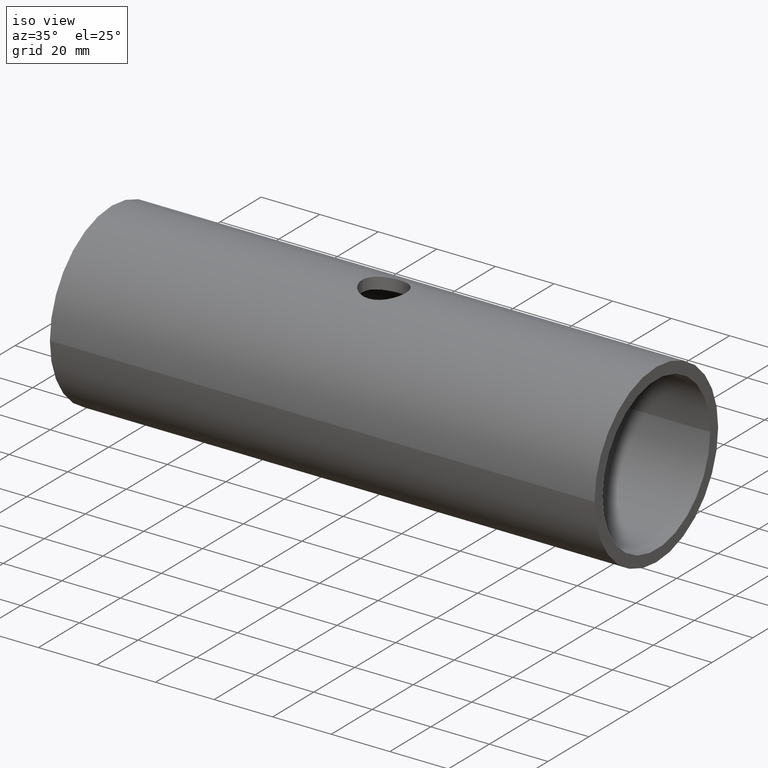
[diagram: clean part render]
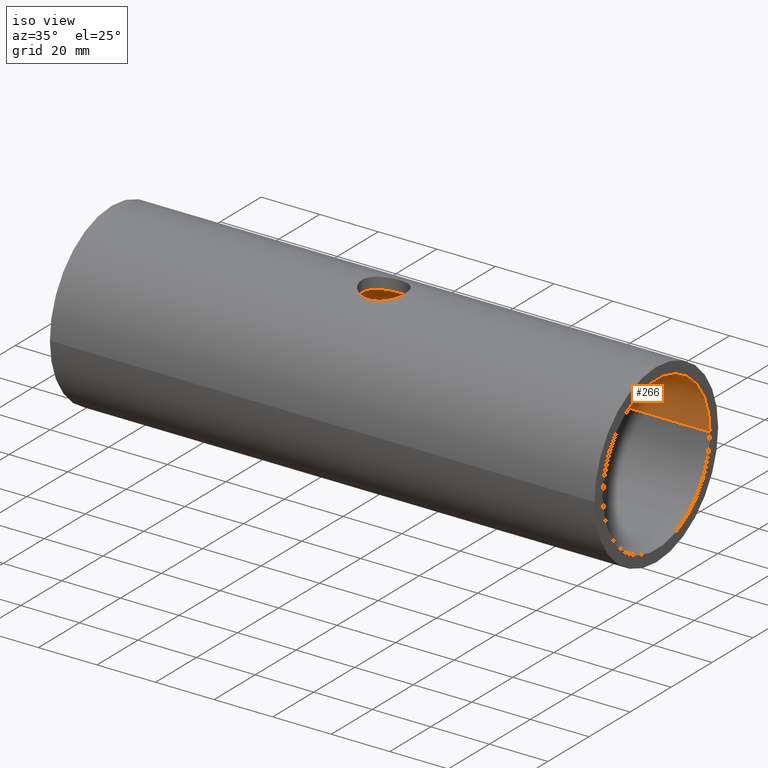
[diagram: same view with one face highlighted and labeled with its STEP entity id]
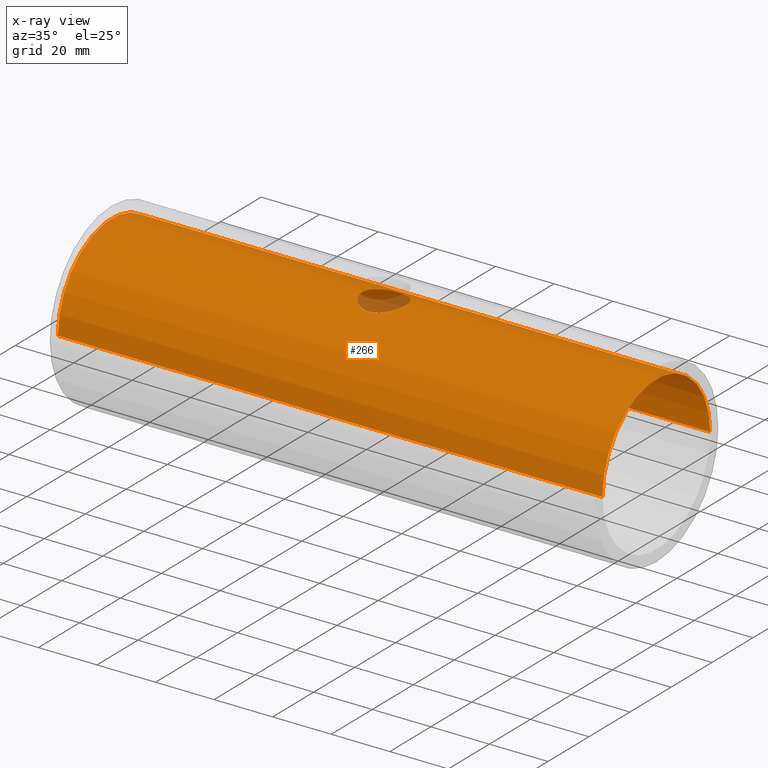
[diagram: x-ray of the same camera — body ghosted, the highlighted face saturated]
A machine part, iso view. The second image highlights one B-rep face of the part: STEP entity #266.
The next image is the same camera in x-ray: the body ghosted, the highlighted face saturated — about 1% of this face is hidden behind the body in this view.
In plain terms, the highlighted cylindrical surface (partial cylindrical patch) has radius 26.25 mm, axis along (1, 0, -0).
Its self-contained STEP definition (entity closure, byte-faithful):
#9 = CARTESIAN_POINT ( 'NONE',  ( 0.4982442228468673684, 7.487512512649368013, 25.15949742635218200 ) ) ;
#10 = B_SPLINE_CURVE_WITH_KNOTS ( 'NONE', 3,
 ( #129, #173, #20, #12, #176, #426, #469, #430, #210, #460, #286, #432, #276, #239, #356, #397, #389, #317, #62, #9, #93, #167, #312, #459, #128, #275, #53, #354, #319, #15, #461, #244, #391, #17, #448, #36, #224, #188, #181, #370, #367, #140 ),
 .UNSPECIFIED., .F., .F.,
 ( 4, 2, 2, 2, 2, 2, 2, 2, 2, 2, 2, 2, 2, 2, 2, 2, 2, 2, 2, 2, 4 ),
 ( 0.02357184798304131149, 0.02504468882056489626, 0.02651752965808848450, 0.02799037049561206580, 0.02946321133313565405, 0.03019963175189744470, 0.03093605217065923882, 0.03240889300818282359, 0.03388173384570640490, 0.03461815426446819555, 0.03535457468322998620, 0.03682741552075356750, 0.03756383593951535815, 0.03830025635827714880, 0.03977309719580073011, 0.04124593803332431141, 0.04198235845208610900, 0.04271877887084789965, 0.04419161970837148790, 0.04566446054589507614, 0.04713730138341866438 ),
 .UNSPECIFIED. ) ;
#11 = AXIS2_PLACEMENT_3D ( 'NONE', #350, #394, #237 ) ;
#12 = CARTESIAN_POINT ( 'NONE',  ( 7.257323325381391577, 1.956487219723090698, 26.18153013994171019 ) ) ;
#15 = CARTESIAN_POINT ( 'NONE',  ( -4.579380598035382555, 5.960044461124792470, 25.56599154980069954 ) ) ;
#17 = CARTESIAN_POINT ( 'NONE',  ( -5.947788700670843198, 4.575343241765798652, 25.84890158221534762 ) ) ;
#20 = CARTESIAN_POINT ( 'NONE',  ( 7.451918818702840674, 0.9825935118486395226, 26.23613677163786662 ) ) ;
#23 = CARTESIAN_POINT ( 'NONE',  ( -0.4954307896302108660, -7.499779785306837532, 25.15583040220200672 ) ) ;
#25 = FACE_OUTER_BOUND ( 'NONE', #200, .T. ) ;
#31 = CARTESIAN_POINT ( 'NONE',  ( -6.735596941494830681, -3.335135102591766820, 26.04126808146256167 ) ) ;
#34 = LINE ( 'NONE', #222, #143 ) ;
#36 = CARTESIAN_POINT ( 'NONE',  ( -6.504483939671300341, 3.765872697938024594, 25.98173926936478750 ) ) ;
#42 = DIRECTION ( 'NONE',  ( 1.000000000000000000, 3.061616997868383141E-16, -0.000000000000000000 ) ) ;
#53 = CARTESIAN_POINT ( 'NONE',  ( -2.651573279083387469, 7.019901144310327190, 25.29412891396165364 ) ) ;
#56 = VERTEX_POINT ( 'NONE', #478 ) ;
#62 = CARTESIAN_POINT ( 'NONE',  ( 0.9901362894668428449, 7.438462277982056392, 25.17404284799605563 ) ) ;
#65 = CARTESIAN_POINT ( 'NONE',  ( 2.421665530511560416, -7.115405333184021686, 25.26800389219186727 ) ) ;
#68 = CARTESIAN_POINT ( 'NONE',  ( 5.959793766460320441, -4.579171722100744191, 25.85076796984041181 ) ) ;
#71 = CARTESIAN_POINT ( 'NONE',  ( 4.948487315591407310, -5.641125964974412987, 25.63719029907033331 ) ) ;
#75 = CARTESIAN_POINT ( 'NONE',  ( -4.957307021794875368, -5.649050145479054486, 25.63735583606916890 ) ) ;
#77 = EDGE_CURVE ( 'NONE', #357, #145, #296, .T. ) ;
#82 = CARTESIAN_POINT ( 'NONE',  ( 7.500000000000000000, -0.2455578652031206732, 26.24999999999999645 ) ) ;
#85 = CARTESIAN_POINT ( 'NONE',  ( -93.00000000000001421, 26.24999999999998224, 0.000000000000000000 ) ) ;
#88 = EDGE_CURVE ( 'NONE', #466, #98, #34, .T. ) ;
#93 = CARTESIAN_POINT ( 'NONE',  ( 0.2483299581783618426, 7.499962883882426823, 25.15577581276076202 ) ) ;
#94 = ORIENTED_EDGE ( 'NONE', *, *, #77, .F. ) ;
#97 = DIRECTION ( 'NONE',  ( 5.286776307738840622E-16, -1.000000000000000000, 0.000000000000000000 ) ) ;
#98 = VERTEX_POINT ( 'NONE', #263 ) ;
#106 = DIRECTION ( 'NONE',  ( 1.000000000000000000, 3.061616997868383141E-16, -0.000000000000000000 ) ) ;
#108 = CARTESIAN_POINT ( 'NONE',  ( -7.500000000000000000, 0.000000000000000000, 26.24999999999999645 ) ) ;
#114 = CARTESIAN_POINT ( 'NONE',  ( -2.654052559620941665, -7.018943290593978368, 25.29439405483505254 ) ) ;
#116 = CARTESIAN_POINT ( 'NONE',  ( 7.402417214875510076, -1.230903245559818560, 26.22224469222763332 ) ) ;
#123 = CARTESIAN_POINT ( 'NONE',  ( 7.500000000000000000, 9.185202140829394798E-16, 26.25000000000000000 ) ) ;
#125 = AXIS2_PLACEMENT_3D ( 'NONE', #417, #310, #97 ) ;
#128 = CARTESIAN_POINT ( 'NONE',  ( -1.946825517914259063, 7.247145416207924740, 25.22988295778231915 ) ) ;
#129 = CARTESIAN_POINT ( 'NONE',  ( 7.500000000000000000, 9.185202140829394798E-16, 26.25000000000000000 ) ) ;
#132 = EDGE_CURVE ( 'NONE', #145, #98, #184, .T. ) ;
#140 = CARTESIAN_POINT ( 'NONE',  ( -7.500000000000000000, 0.000000000000000000, 26.24999999999999645 ) ) ;
#142 = CARTESIAN_POINT ( 'NONE',  ( -5.637510002311412194, -4.952645468390433514, 25.77927375884239325 ) ) ;
#143 = VECTOR ( 'NONE', #383, 1000.000000000000000 ) ;
#145 = VERTEX_POINT ( 'NONE', #279 ) ;
#148 = CARTESIAN_POINT ( 'NONE',  ( 6.502740149739227427, -3.768597344396964033, 25.98131429213729859 ) ) ;
#150 = CARTESIAN_POINT ( 'NONE',  ( -3.762350377321380446, -6.506730541467970141, 25.43235298066393568 ) ) ;
#153 = CARTESIAN_POINT ( 'NONE',  ( -6.504952719529422112, -3.764981594919491137, 25.98186096117645860 ) ) ;
#156 = CARTESIAN_POINT ( 'NONE',  ( 7.257022267147787531, -1.956844783364594775, 26.18144794486693172 ) ) ;
#167 = CARTESIAN_POINT ( 'NONE',  ( -0.4932893763482117389, 7.500073979778701272, 25.15574269036435595 ) ) ;
#173 = CARTESIAN_POINT ( 'NONE',  ( 7.500000000000000000, 0.4909825002862310273, 26.25000000000000711 ) ) ;
#176 = CARTESIAN_POINT ( 'NONE',  ( 7.113836750685355703, 2.425452911901687880, 26.14166035846440650 ) ) ;
#177 = ORIENTED_EDGE ( 'NONE', *, *, #333, .T. ) ;
#181 = CARTESIAN_POINT ( 'NONE',  ( -7.257729075573986499, 1.953876576627915362, 26.18164515216760080 ) ) ;
#183 = CARTESIAN_POINT ( 'NONE',  ( -7.246822489867941641, -1.947966752084596687, 26.17869650504931656 ) ) ;
#184 = CIRCLE ( 'NONE', #125, 26.25000000000000000 ) ;
#186 = CYLINDRICAL_SURFACE ( 'NONE', #421, 26.25000000000000000 ) ;
#188 = CARTESIAN_POINT ( 'NONE',  ( -7.111404207987189530, 2.432616021029860853, 26.14099483213148289 ) ) ;
#200 = EDGE_LOOP ( 'NONE', ( #94, #234, #470, #360 ) ) ;
#210 = CARTESIAN_POINT ( 'NONE',  ( 5.650271246520413904, 4.956182449128235135, 25.78029389019253870 ) ) ;
#212 = CARTESIAN_POINT ( 'NONE',  ( -3.330092453580004275, -6.737857513618714655, 25.37127348395359050 ) ) ;
#213 = EDGE_CURVE ( 'NONE', #357, #466, #376, .T. ) ;
#216 = CARTESIAN_POINT ( 'NONE',  ( 4.570411846740224604, -5.951568231689370769, 25.56690564317473857 ) ) ;
#218 = CARTESIAN_POINT ( 'NONE',  ( 6.738411789018767806, -3.329209596498880597, 26.04200243331143838 ) ) ;
#219 = VERTEX_POINT ( 'NONE', #351 ) ;
#222 = CARTESIAN_POINT ( 'NONE',  ( -93.00000000000001421, 26.24999999999998224, 0.000000000000000000 ) ) ;
#224 = CARTESIAN_POINT ( 'NONE',  ( -6.734812539582997637, 3.336463782483592766, 26.04106835265158892 ) ) ;
#234 = ORIENTED_EDGE ( 'NONE', *, *, #213, .T. ) ;
#237 = DIRECTION ( 'NONE',  ( 5.286776307738840622E-16, -1.000000000000000000, 0.000000000000000000 ) ) ;
#239 = CARTESIAN_POINT ( 'NONE',  ( 3.767512594301681617, 6.503277777481168975, 25.43319712410920630 ) ) ;
#240 = B_SPLINE_CURVE_WITH_KNOTS ( 'NONE', 3,
 ( #108, #403, #409, #482, #183, #326, #442, #31, #153, #332, #408, #142, #373, #75, #480, #150, #212, #114, #300, #299, #363, #477, #23, #291, #399, #439, #65, #473, #255, #258, #288, #434, #216, #71, #405, #365, #68, #148, #218, #379, #156, #116, #303, #272, #82, #123 ),
 .UNSPECIFIED., .F., .F.,
 ( 4, 2, 2, 2, 2, 2, 2, 2, 2, 2, 2, 2, 2, 2, 2, 2, 2, 2, 2, 2, 2, 2, 4 ),
 ( 0.000000000000000000, 0.001473240498940076330, 0.002209860748410115254, 0.002946480997880153961, 0.004419721496820232243, 0.005156341746290273552, 0.005892961995760314861, 0.007366202494700398347, 0.008839442993640481833, 0.009576063243110524009, 0.01031268349258056619, 0.01178592399152065054, 0.01325916449046073489, 0.01473240498940081925, 0.01546902523887086142, 0.01620564548834090013, 0.01694226573781094231, 0.01767888598728098101, 0.01915212648622106537, 0.02062536698516114625, 0.02209860748410123060, 0.02283522773357126931, 0.02357184798304131149 ),
 .UNSPECIFIED. ) ;
#241 = VECTOR ( 'NONE', #42, 1000.000000000000000 ) ;
#242 = EDGE_CURVE ( 'NONE', #219, #56, #10, .T. ) ;
#244 = CARTESIAN_POINT ( 'NONE',  ( -5.472852982011519707, 5.133906058509772663, 25.74366513659960276 ) ) ;
#255 = CARTESIAN_POINT ( 'NONE',  ( 3.329099623049039725, -6.725110091659699307, 25.37419375296325441 ) ) ;
#258 = CARTESIAN_POINT ( 'NONE',  ( 3.760854861028969598, -6.493533765170020011, 25.43444187707800452 ) ) ;
#263 = CARTESIAN_POINT ( 'NONE',  ( 92.99999999999998579, 26.25000000000003553, 0.000000000000000000 ) ) ;
#264 = DIRECTION ( 'NONE',  ( -5.286776307738840622E-16, 1.000000000000000000, 0.000000000000000000 ) ) ;
#266 = ADVANCED_FACE ( 'NONE', ( #25, #335 ), #186, .F. ) ;
#272 = CARTESIAN_POINT ( 'NONE',  ( 7.487970237574799626, -0.4913853977594473399, 26.24655510308049244 ) ) ;
#275 = CARTESIAN_POINT ( 'NONE',  ( -2.420343119787519370, 7.103040578749562961, 25.27083151152125495 ) ) ;
#276 = CARTESIAN_POINT ( 'NONE',  ( 4.374061799618885971, 6.097276164234351370, 25.53243295943962821 ) ) ;
#279 = CARTESIAN_POINT ( 'NONE',  ( 93.00000000000001421, -26.24999999999995737, 3.214697847761801189E-15 ) ) ;
#286 = CARTESIAN_POINT ( 'NONE',  ( 4.948289129293734767, 5.641310561938008838, 25.63715060133847601 ) ) ;
#288 = CARTESIAN_POINT ( 'NONE',  ( 3.969903232452988817, -6.367824406519703828, 25.46630650255037054 ) ) ;
#291 = CARTESIAN_POINT ( 'NONE',  ( 0.4887408361427151848, -7.500218722843835728, 25.15569953632676103 ) ) ;
#296 = LINE ( 'NONE', #443, #241 ) ;
#299 = CARTESIAN_POINT ( 'NONE',  ( -1.952880253302268443, -7.245470657837382866, 25.23036323795800584 ) ) ;
#300 = CARTESIAN_POINT ( 'NONE',  ( -2.423745247340379549, -7.101833940139360202, 25.27116991473822694 ) ) ;
#303 = CARTESIAN_POINT ( 'NONE',  ( 7.439335117364487715, -0.9835908191340029250, 26.23272123681961787 ) ) ;
#310 = DIRECTION ( 'NONE',  ( -1.000000000000000000, -3.061616997868383141E-16, 0.000000000000000000 ) ) ;
#312 = CARTESIAN_POINT ( 'NONE',  ( -0.9817838444267446008, 7.451732760015125301, 25.17030395290986888 ) ) ;
#317 = CARTESIAN_POINT ( 'NONE',  ( 1.233156100729055016, 7.401981414836988904, 25.18483043203504934 ) ) ;
#319 = CARTESIAN_POINT ( 'NONE',  ( -3.760138081456863457, 6.508011850682597021, 25.43202382144291818 ) ) ;
#326 = CARTESIAN_POINT ( 'NONE',  ( -7.102950407663639609, -2.420559062108124326, 26.13923524125284814 ) ) ;
#332 = CARTESIAN_POINT ( 'NONE',  ( -6.096642825507692542, -4.375022323546988723, 25.88366475255121912 ) ) ;
#333 = EDGE_CURVE ( 'NONE', #56, #219, #240, .T. ) ;
#335 = FACE_BOUND ( 'NONE', #404, .T. ) ;
#338 = CARTESIAN_POINT ( 'NONE',  ( -93.00000000000000000, -1.665519646840400224E-14, 0.000000000000000000 ) ) ;
#350 = CARTESIAN_POINT ( 'NONE',  ( -93.00000000000000000, -1.665519646840400224E-14, 0.000000000000000000 ) ) ;
#351 = CARTESIAN_POINT ( 'NONE',  ( 7.500000000000000000, 9.185202140829394798E-16, 26.25000000000000000 ) ) ;
#354 = CARTESIAN_POINT ( 'NONE',  ( -3.329351404825918959, 6.738310689196337577, 25.37115581568690104 ) ) ;
#356 = CARTESIAN_POINT ( 'NONE',  ( 3.337608350023149928, 6.734658048627153448, 25.37214533677547124 ) ) ;
#357 = VERTEX_POINT ( 'NONE', #412 ) ;
#360 = ORIENTED_EDGE ( 'NONE', *, *, #132, .F. ) ;
#363 = CARTESIAN_POINT ( 'NONE',  ( -1.710908588618183845, -7.306426584719936557, 25.21271845319628113 ) ) ;
#365 = CARTESIAN_POINT ( 'NONE',  ( 5.651282889424636302, -4.955110513325930555, 25.78050852553939976 ) ) ;
#367 = CARTESIAN_POINT ( 'NONE',  ( -7.500000000000000888, 0.4982058163592093525, 26.25000000000000000 ) ) ;
#370 = CARTESIAN_POINT ( 'NONE',  ( -7.450835287855700706, 0.9885942162341219142, 26.23583156727351806 ) ) ;
#373 = CARTESIAN_POINT ( 'NONE',  ( -5.473477316321894826, -5.133245677086580194, 25.74379749126987349 ) ) ;
#376 = CIRCLE ( 'NONE', #11, 26.25000000000000000 ) ;
#379 = CARTESIAN_POINT ( 'NONE',  ( 7.114121553038681434, -2.424686475484583159, 26.14173717964476396 ) ) ;
#383 = DIRECTION ( 'NONE',  ( 1.000000000000000000, 3.061616997868383141E-16, -0.000000000000000000 ) ) ;
#389 = CARTESIAN_POINT ( 'NONE',  ( 1.953701428664897044, 7.257620964549108322, 25.22695956628031055 ) ) ;
#391 = CARTESIAN_POINT ( 'NONE',  ( -5.636689857749582977, 4.953552629713615651, 25.77909608833646260 ) ) ;
#394 = DIRECTION ( 'NONE',  ( -1.000000000000000000, -3.061616997868383141E-16, 0.000000000000000000 ) ) ;
#397 = CARTESIAN_POINT ( 'NONE',  ( 2.423111497454646823, 7.115038945851655861, 25.26811427117999287 ) ) ;
#399 = CARTESIAN_POINT ( 'NONE',  ( 0.9887303751573615074, -7.450776873980950121, 25.17058817717379426 ) ) ;
#403 = CARTESIAN_POINT ( 'NONE',  ( -7.500000000000000888, -0.4983410065557322133, 26.24999999999999645 ) ) ;
#404 = EDGE_LOOP ( 'NONE', ( #177, #474 ) ) ;
#405 = CARTESIAN_POINT ( 'NONE',  ( 5.131695289651228009, -5.475009870134080359, 25.67329501506585743 ) ) ;
#408 = CARTESIAN_POINT ( 'NONE',  ( -5.949193994331165136, -4.573544247030251420, 25.84922330920921496 ) ) ;
#409 = CARTESIAN_POINT ( 'NONE',  ( -7.450829298908976384, -0.9878503684902701920, 26.23583142303813531 ) ) ;
#412 = CARTESIAN_POINT ( 'NONE',  ( -92.99999999999998579, -26.25000000000001421, 3.214697847761804739E-15 ) ) ;
#417 = CARTESIAN_POINT ( 'NONE',  ( 93.00000000000000000, 4.029087969194792054E-14, 0.000000000000000000 ) ) ;
#421 = AXIS2_PLACEMENT_3D ( 'NONE', #338, #106, #264 ) ;
#426 = CARTESIAN_POINT ( 'NONE',  ( 6.738332092315380883, 3.329320614919294652, 26.04198249688827360 ) ) ;
#430 = CARTESIAN_POINT ( 'NONE',  ( 5.958980815166463607, 4.580329607741602693, 25.85057512543576053 ) ) ;
#432 = CARTESIAN_POINT ( 'NONE',  ( 4.569809128491229444, 5.952041220663555343, 25.56679645789564503 ) ) ;
#434 = CARTESIAN_POINT ( 'NONE',  ( 4.374681853012227783, -6.096841644018174300, 25.53253760443472231 ) ) ;
#439 = CARTESIAN_POINT ( 'NONE',  ( 1.952826203728055710, -7.257970349804494958, 25.22685972554033640 ) ) ;
#442 = CARTESIAN_POINT ( 'NONE',  ( -7.018745588281259273, -2.654723798191806150, 26.11641263489492815 ) ) ;
#443 = CARTESIAN_POINT ( 'NONE',  ( -92.99999999999998579, -26.25000000000001776, 3.214697847761801189E-15 ) ) ;
#448 = CARTESIAN_POINT ( 'NONE',  ( -6.095520068589555862, 4.376603959470310556, 25.88339923467414394 ) ) ;
#459 = CARTESIAN_POINT ( 'NONE',  ( -1.705812233142076639, 7.307582348918679749, 25.21238278635936680 ) ) ;
#460 = CARTESIAN_POINT ( 'NONE',  ( 5.131514738717514845, 5.475160627178025763, 25.67326071012477939 ) ) ;
#461 = CARTESIAN_POINT ( 'NONE',  ( -4.956863183113342508, 5.649420510561983022, 25.63727154411621711 ) ) ;
#466 = VERTEX_POINT ( 'NONE', #85 ) ;
#469 = CARTESIAN_POINT ( 'NONE',  ( 6.503023089598539030, 3.768230667995873251, 25.98137970285889864 ) ) ;
#470 = ORIENTED_EDGE ( 'NONE', *, *, #88, .T. ) ;
#473 = CARTESIAN_POINT ( 'NONE',  ( 3.105152983293152147, -6.831463181459628942, 25.34567496118802055 ) ) ;
#474 = ORIENTED_EDGE ( 'NONE', *, *, #242, .T. ) ;
#477 = CARTESIAN_POINT ( 'NONE',  ( -0.9838439179291236236, -7.451601283696856370, 25.17034571198802695 ) ) ;
#478 = CARTESIAN_POINT ( 'NONE',  ( -7.500000000000000000, 0.000000000000000000, 26.24999999999999645 ) ) ;
#480 = CARTESIAN_POINT ( 'NONE',  ( -4.581351732828556678, -5.958526579710058613, 25.56634665866922518 ) ) ;
#482 = CARTESIAN_POINT ( 'NONE',  ( -7.306689255914529113, -1.709522891190677907, 26.19538282191434675 ) ) ;